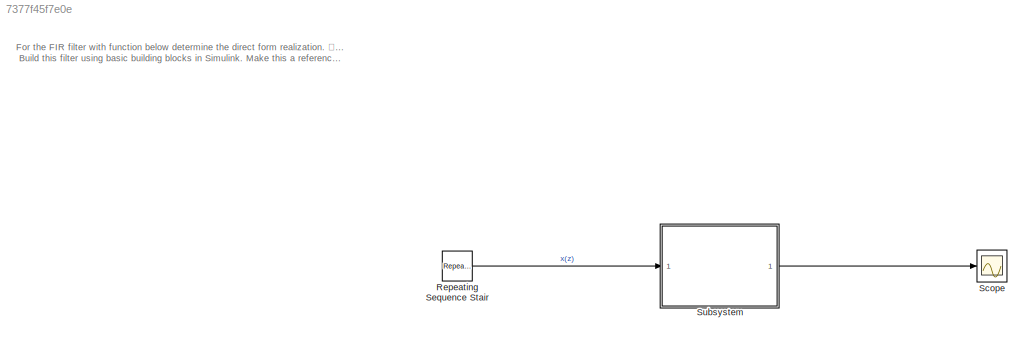
MODEL slx_7377f45f7e0e
KIND model
CONFIG AbsTol = auto
CONFIG EnableMultiTasking = off
CONFIG FixedStep = auto
CONFIG MaxStep = auto
CONFIG MinStep = auto
CONFIG RelTol = 1e-3
CONFIG SampleTimeConstraint = Unconstrained
CONFIG Solver = VariableStepAuto
CONFIG SolverName = VariableStepAuto
CONFIG StartTime = 0.0
CONFIG StopTime = 10.0
BLOCK [Reference] Repeating Sequence Stair  REF=simulink/Sources/Repeating
Sequence
Stair
  Ports = [0, 1]
  SourceBlock = simulink/Sources/Repeating\nSequence\nStair
  SourceProductBaseCode = SL
  SourceType = Repeating Sequence Stair
BLOCK [Scope] Scope
  Floating = off
  NumInputPorts = 1
  Ports = [1]
  ScopeSpecificationString = Simulink.scopes.TimeScopeBlockCfg('CurrentConfiguration', extmgr.ConfigurationSet(extmgr.Configuration('Core','General UI',true),extmgr.Configuration('Core','Source UI',true),extmgr.Configuration('Sources','WiredSimulink',true),extmgr.Configuration('Visuals','Time Domain',true,'SerializedDisplays',{struct('MinYLimReal','-15.5','MaxYLimReal','19.5','YLabelReal','','MinYLimMag','0.00000','MaxYLimMag...<+1354ch>
BLOCK [ModelReference] Subsystem
  ModelNameDialog = Subsystem0
  ModelReferenceVersion = 1.12
  Ports = [1, 1]
ANNOTATION (root): For the FIR filter with function below determine the direct form realization. 𝐇(𝐳) = 𝟏 + 𝟐𝐳−𝟏−𝟑𝐳−𝟐−𝟒𝐳−𝟑+𝟓𝐳−𝟒 Build this filter using basic building blocks in Simulink. Make this a reference model.
LINE Repeating Sequence Stair:1 -> Subsystem:1
LINE Subsystem:1 -> Scope:1
